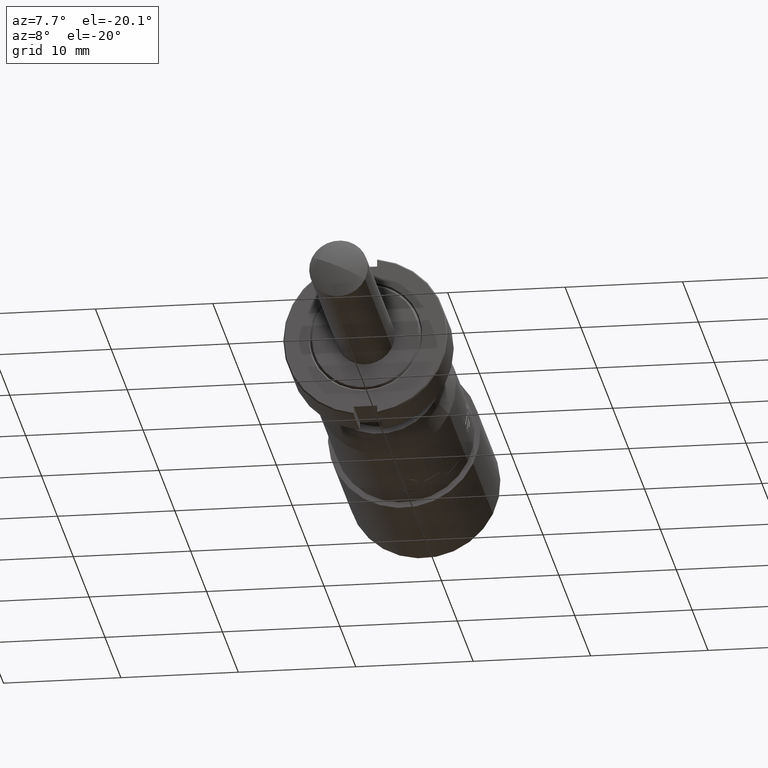
[diagram: clean part render]
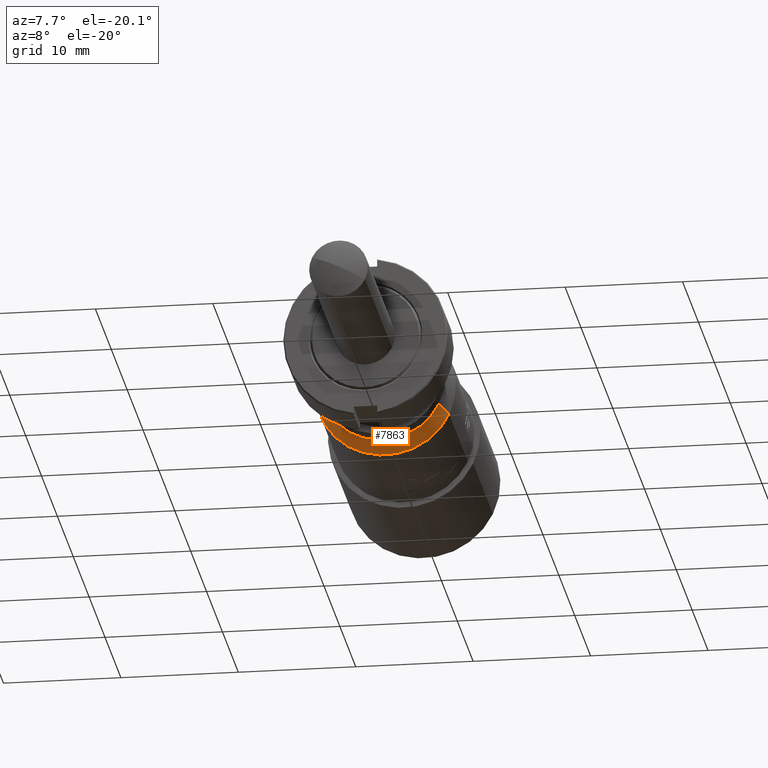
[diagram: same view with one face highlighted and labeled with its STEP entity id]
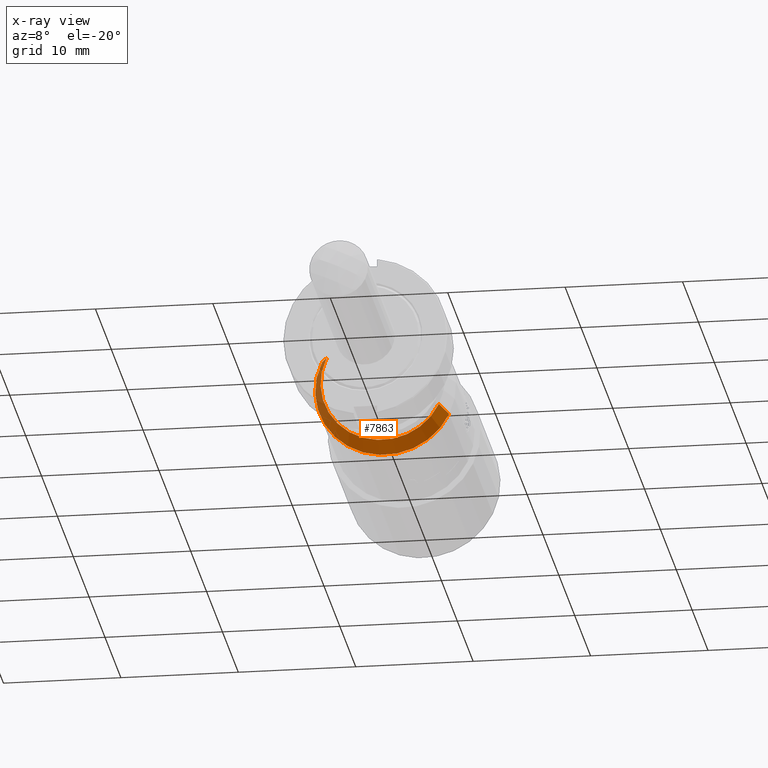
[diagram: x-ray of the same camera — body ghosted, the highlighted face saturated]
A machine part, auxiliary view. The second image highlights one B-rep face of the part: STEP entity #7863.
The next image is the same camera in x-ray: the body ghosted, the highlighted face saturated — about 16% of this face is hidden behind the body in this view.
In plain terms, the highlighted conical surface has half-angle 21.42 deg.
Its self-contained STEP definition (entity closure, byte-faithful):
#405 = EDGE_LOOP ( 'NONE', ( #6690, #4732, #7965, #9677 ) ) ;
#535 = VERTEX_POINT ( 'NONE', #12551 ) ;
#663 = DIRECTION ( 'NONE',  ( -1.101876641632675700E-016, 1.000000000000000000, -2.975472225002335400E-018 ) ) ;
#1440 = FACE_OUTER_BOUND ( 'NONE', #405, .T. ) ;
#3170 = CARTESIAN_POINT ( 'NONE',  ( 24.20443465400196800, 13.82041419821185900, 16.01435052741648900 ) ) ;
#3334 = AXIS2_PLACEMENT_3D ( 'NONE', #5295, #12837, #6356 ) ;
#4352 = AXIS2_PLACEMENT_3D ( 'NONE', #7041, #663, #8144 ) ;
#4732 = ORIENTED_EDGE ( 'NONE', *, *, #6458, .F. ) ;
#5027 = CIRCLE ( 'NONE', #4352, 6.000000000000008900 ) ;
#5295 = CARTESIAN_POINT ( 'NONE',  ( 18.79276886405920500, 12.03603129132215700, 18.60546483943822300 ) ) ;
#5377 = DIRECTION ( 'NONE',  ( -0.9019442983237868600, 0.0000000000000000000, 0.4318523853369479700 ) ) ;
#6029 = VECTOR ( 'NONE', #10685, 1000.000000000000000 ) ;
#6356 = DIRECTION ( 'NONE',  ( 0.9019442983237868600, 0.0000000000000000000, -0.4318523853369479200 ) ) ;
#6458 = EDGE_CURVE ( 'NONE', #12205, #535, #10632, .T. ) ;
#6690 = ORIENTED_EDGE ( 'NONE', *, *, #9665, .F. ) ;
#6959 = DIRECTION ( 'NONE',  ( -0.3293873074011650600, 0.9309302805464208000, 0.1577111742546243000 ) ) ;
#7041 = CARTESIAN_POINT ( 'NONE',  ( 18.79276886405923700, 13.82041419821185900, 18.60546483943818100 ) ) ;
#7270 = DIRECTION ( 'NONE',  ( -1.101876641632675700E-016, 1.000000000000000000, -2.975472225002335400E-018 ) ) ;
#7483 = CARTESIAN_POINT ( 'NONE',  ( 18.79276886405923700, 13.82041419821185900, 18.60546483943818100 ) ) ;
#7863 = ADVANCED_FACE ( 'NONE', ( #1440 ), #10020, .T. ) ;
#7965 = ORIENTED_EDGE ( 'NONE', *, *, #12347, .T. ) ;
#8144 = DIRECTION ( 'NONE',  ( -0.9019442983237868600, 0.0000000000000000000, 0.4318523853369479700 ) ) ;
#8424 = CARTESIAN_POINT ( 'NONE',  ( 14.01246408294313600, 12.03603129132215700, 20.89428248172405500 ) ) ;
#8800 = VERTEX_POINT ( 'NONE', #10370 ) ;
#8984 = AXIS2_PLACEMENT_3D ( 'NONE', #7483, #7270, #5377 ) ;
#9604 = LINE ( 'NONE', #13444, #12125 ) ;
#9665 = EDGE_CURVE ( 'NONE', #535, #8800, #11816, .T. ) ;
#9677 = ORIENTED_EDGE ( 'NONE', *, *, #12150, .F. ) ;
#9891 = VERTEX_POINT ( 'NONE', #9975 ) ;
#9975 = CARTESIAN_POINT ( 'NONE',  ( 13.38110307411651000, 13.82041419821185900, 21.19657915145987200 ) ) ;
#10020 = CONICAL_SURFACE ( 'NONE', #8984, 6.000000000000008900, 0.3738443575602842200 ) ;
#10370 = CARTESIAN_POINT ( 'NONE',  ( 24.20443465400196800, 13.82041419821185900, 16.01435052741648900 ) ) ;
#10632 = CIRCLE ( 'NONE', #3334, 5.300000000000006900 ) ;
#10685 = DIRECTION ( 'NONE',  ( 0.3293873074011649000, 0.9309302805464209100, -0.1577111742546243000 ) ) ;
#11816 = LINE ( 'NONE', #3170, #6029 ) ;
#12125 = VECTOR ( 'NONE', #6959, 1000.000000000000100 ) ;
#12150 = EDGE_CURVE ( 'NONE', #8800, #9891, #5027, .T. ) ;
#12205 = VERTEX_POINT ( 'NONE', #8424 ) ;
#12347 = EDGE_CURVE ( 'NONE', #12205, #9891, #9604, .T. ) ;
#12551 = CARTESIAN_POINT ( 'NONE',  ( 23.57307364517528100, 12.03603129132215700, 16.31664719715239500 ) ) ;
#12837 = DIRECTION ( 'NONE',  ( 1.101876641632675700E-016, -1.000000000000000000, 2.975472225002335400E-018 ) ) ;
#13444 = CARTESIAN_POINT ( 'NONE',  ( 13.38110307411651000, 13.82041419821185900, 21.19657915145987200 ) ) ;